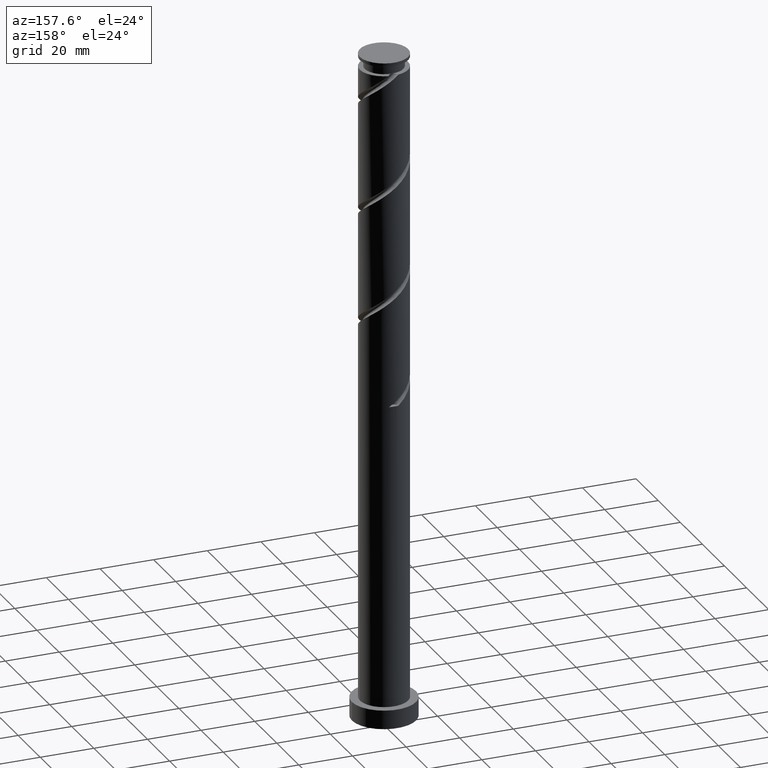
[diagram: clean part render]
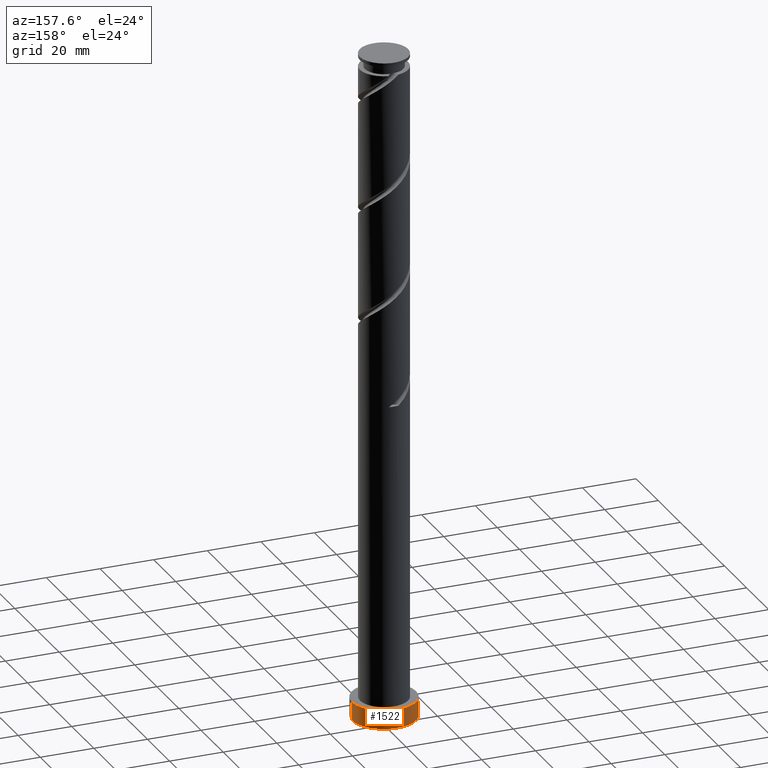
[diagram: same view with one face highlighted and labeled with its STEP entity id]
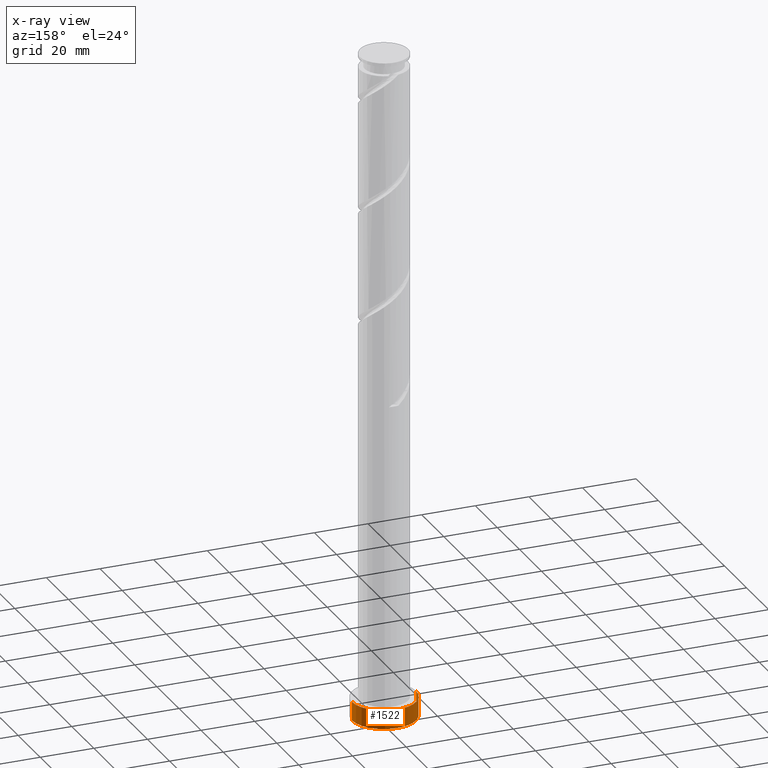
[diagram: x-ray of the same camera — body ghosted, the highlighted face saturated]
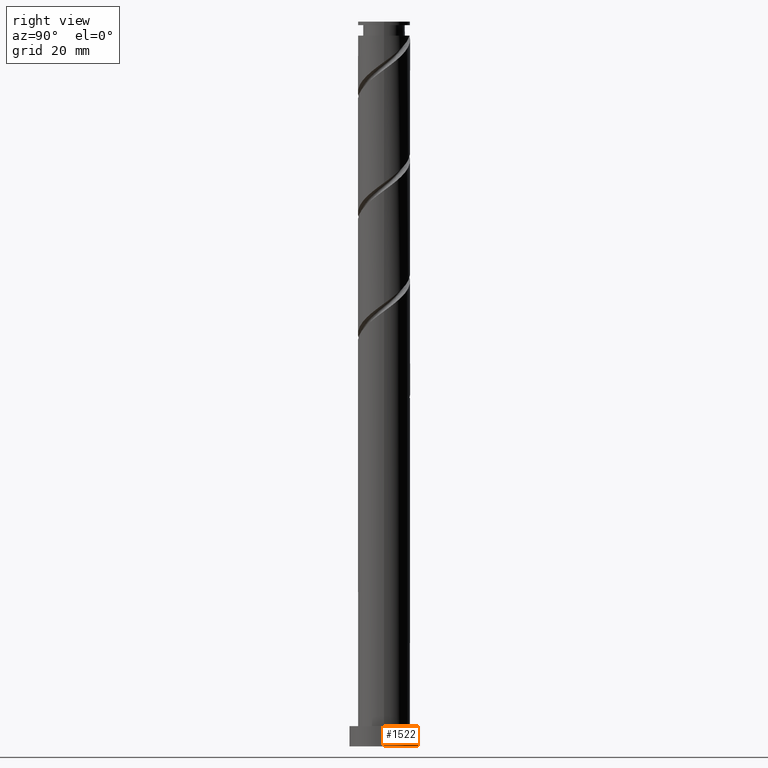
[diagram: same view with one face highlighted and labeled with its STEP entity id]
A machine part, auxiliary view. The second image highlights one B-rep face of the part: STEP entity #1522.
The next image is the same camera in x-ray: the body ghosted, the highlighted face saturated — about 0% of this face is hidden behind the body in this view.
A second angle (right view) of the same face is appended — the face is thin or edge-on in the first view.
In plain terms, the highlighted cylindrical surface (edge-blend (fillet) strip) has radius 12 mm, axis along (-0, -0, -1).
Its self-contained STEP definition (entity closure, byte-faithful):
#76 = CARTESIAN_POINT ( 'NONE',  ( -12.00000000000000178, 0.000000000000000000, 7.000000000000000000 ) ) ;
#116 = AXIS2_PLACEMENT_3D ( 'NONE', #1575, #1311, #166 ) ;
#138 = EDGE_CURVE ( 'NONE', #555, #992, #302, .T. ) ;
#165 = AXIS2_PLACEMENT_3D ( 'NONE', #702, #1121, #1434 ) ;
#166 = DIRECTION ( 'NONE',  ( 1.000000000000000000, 0.000000000000000000, 0.000000000000000000 ) ) ;
#184 = CARTESIAN_POINT ( 'NONE',  ( 12.00000000000000178, 1.469576158976824144E-15, 7.000000000000000000 ) ) ;
#235 = VECTOR ( 'NONE', #1664, 1000.000000000000000 ) ;
#302 = CIRCLE ( 'NONE', #116, 12.00000000000000178 ) ;
#398 = CARTESIAN_POINT ( 'NONE',  ( -12.00000000000000178, 0.000000000000000000, 7.000000000000000000 ) ) ;
#412 = EDGE_LOOP ( 'NONE', ( #1532, #1579, #1114, #1438 ) ) ;
#423 = DIRECTION ( 'NONE',  ( 0.000000000000000000, 0.000000000000000000, 1.000000000000000000 ) ) ;
#551 = CARTESIAN_POINT ( 'NONE',  ( 12.00000000000000178, 1.469576158976824144E-15, 0.000000000000000000 ) ) ;
#555 = VERTEX_POINT ( 'NONE', #184 ) ;
#702 = CARTESIAN_POINT ( 'NONE',  ( 0.000000000000000000, 0.000000000000000000, 7.000000000000000000 ) ) ;
#705 = CARTESIAN_POINT ( 'NONE',  ( 0.000000000000000000, 0.000000000000000000, 0.000000000000000000 ) ) ;
#741 = LINE ( 'NONE', #749, #1065 ) ;
#742 = DIRECTION ( 'NONE',  ( 1.000000000000000000, 0.000000000000000000, 0.000000000000000000 ) ) ;
#749 = CARTESIAN_POINT ( 'NONE',  ( 12.00000000000000178, 1.469576158976824144E-15, 7.000000000000000000 ) ) ;
#844 = CIRCLE ( 'NONE', #1503, 12.00000000000000178 ) ;
#864 = EDGE_CURVE ( 'NONE', #1400, #1458, #844, .T. ) ;
#992 = VERTEX_POINT ( 'NONE', #398 ) ;
#1008 = FACE_OUTER_BOUND ( 'NONE', #412, .T. ) ;
#1065 = VECTOR ( 'NONE', #1335, 1000.000000000000000 ) ;
#1114 = ORIENTED_EDGE ( 'NONE', *, *, #864, .T. ) ;
#1121 = DIRECTION ( 'NONE',  ( -0.000000000000000000, -0.000000000000000000, -1.000000000000000000 ) ) ;
#1167 = CYLINDRICAL_SURFACE ( 'NONE', #165, 12.00000000000000178 ) ;
#1195 = LINE ( 'NONE', #76, #235 ) ;
#1209 = EDGE_CURVE ( 'NONE', #555, #1400, #741, .T. ) ;
#1227 = EDGE_CURVE ( 'NONE', #992, #1458, #1195, .T. ) ;
#1311 = DIRECTION ( 'NONE',  ( 0.000000000000000000, 0.000000000000000000, 1.000000000000000000 ) ) ;
#1335 = DIRECTION ( 'NONE',  ( -0.000000000000000000, -0.000000000000000000, -1.000000000000000000 ) ) ;
#1400 = VERTEX_POINT ( 'NONE', #551 ) ;
#1434 = DIRECTION ( 'NONE',  ( -1.000000000000000000, 0.000000000000000000, 0.000000000000000000 ) ) ;
#1438 = ORIENTED_EDGE ( 'NONE', *, *, #1227, .F. ) ;
#1458 = VERTEX_POINT ( 'NONE', #1821 ) ;
#1503 = AXIS2_PLACEMENT_3D ( 'NONE', #705, #423, #742 ) ;
#1522 = ADVANCED_FACE ( 'NONE', ( #1008 ), #1167, .T. ) ;
#1532 = ORIENTED_EDGE ( 'NONE', *, *, #138, .F. ) ;
#1575 = CARTESIAN_POINT ( 'NONE',  ( 0.000000000000000000, 0.000000000000000000, 7.000000000000000000 ) ) ;
#1579 = ORIENTED_EDGE ( 'NONE', *, *, #1209, .T. ) ;
#1664 = DIRECTION ( 'NONE',  ( -0.000000000000000000, -0.000000000000000000, -1.000000000000000000 ) ) ;
#1821 = CARTESIAN_POINT ( 'NONE',  ( -12.00000000000000178, 0.000000000000000000, 0.000000000000000000 ) ) ;